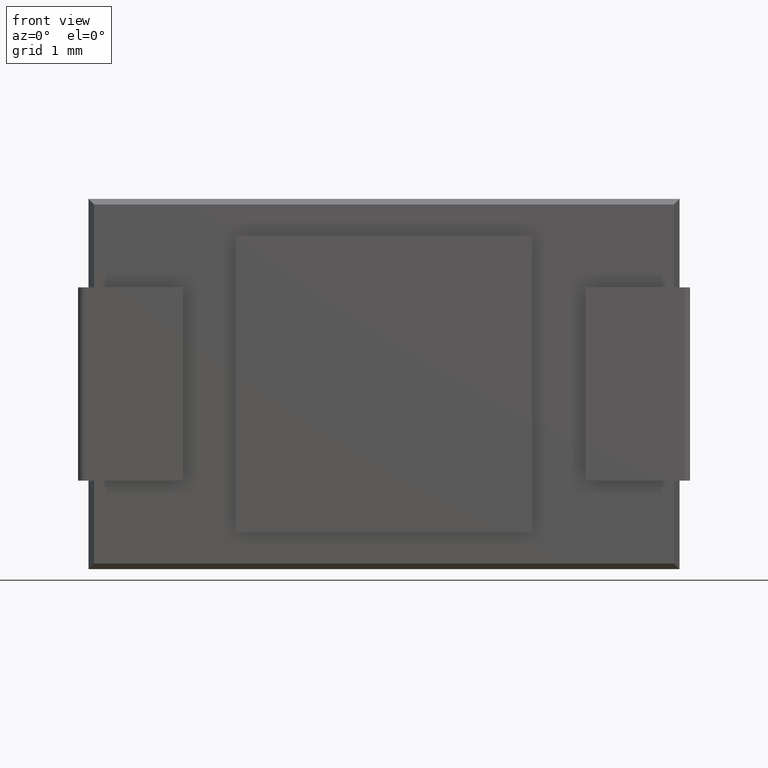
[diagram: clean part render]
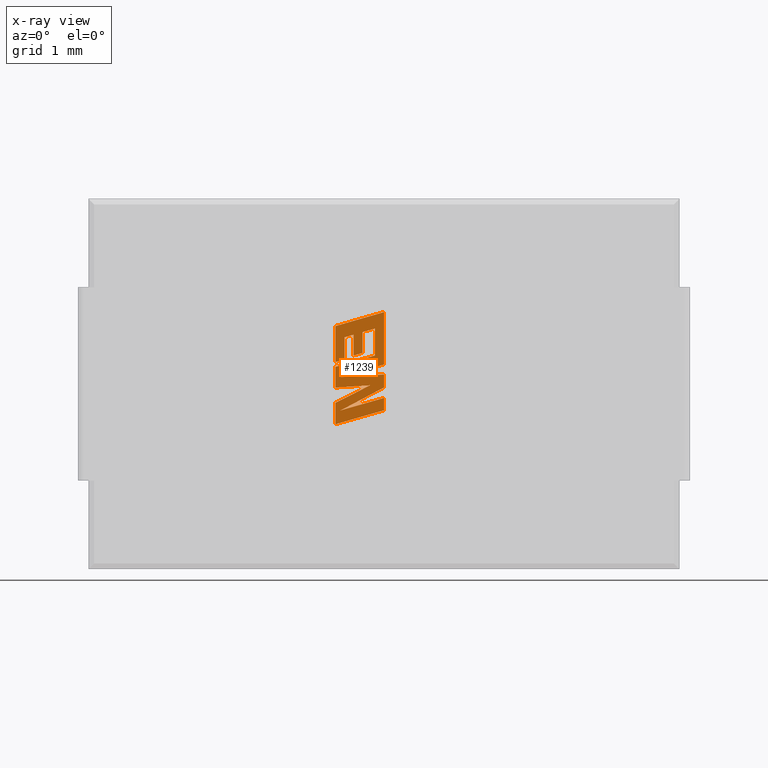
[diagram: x-ray — body ghosted, one internal face saturated and labeled with its STEP entity id]
A machine part, front view, then the same camera in x-ray: the body is ghosted and one INTERNAL B-rep face — a face not visible from any outside direction — is saturated and labeled: STEP entity #1239.
In plain terms, the highlighted planar face has unit normal (-0, 1, -0).
Its self-contained STEP definition (entity closure, byte-faithful):
#20 = CARTESIAN_POINT ( 'NONE',  ( 0.6037723352831047000, 0.9700000000000000800, 0.04544514194465076900 ) ) ;
#34 = CARTESIAN_POINT ( 'NONE',  ( 0.1148680530367434800, 0.9700000000000000800, -0.6869074634693742600 ) ) ;
#123 = EDGE_CURVE ( 'NONE', #1769, #382, #3809, .T. ) ;
#128 = DIRECTION ( 'NONE',  ( -0.9984327301130305800, 0.0000000000000000000, -0.05596501978057384600 ) ) ;
#158 = EDGE_CURVE ( 'NONE', #2965, #1247, #3857, .T. ) ;
#184 = CARTESIAN_POINT ( 'NONE',  ( 0.6037723352831740900, 0.9700000000000000800, -0.7179495588611855000 ) ) ;
#230 = EDGE_CURVE ( 'NONE', #2480, #3153, #2085, .T. ) ;
#241 = ORIENTED_EDGE ( 'NONE', *, *, #158, .F. ) ;
#282 = ORIENTED_EDGE ( 'NONE', *, *, #1126, .F. ) ;
#291 = AXIS2_PLACEMENT_3D ( 'NONE', #3884, #2661, #862 ) ;
#315 = DIRECTION ( 'NONE',  ( 9.097978414977007300E-014, 0.0000000000000000000, -1.000000000000000000 ) ) ;
#317 = VECTOR ( 'NONE', #1668, 1000.000000000000000 ) ;
#326 = EDGE_CURVE ( 'NONE', #1790, #948, #2222, .T. ) ;
#358 = CARTESIAN_POINT ( 'NONE',  ( 0.6037723352831335700, 0.9700000000000000800, -0.2719027913677968800 ) ) ;
#382 = VERTEX_POINT ( 'NONE', #1386 ) ;
#400 = LINE ( 'NONE', #2380, #1717 ) ;
#416 = LINE ( 'NONE', #2887, #317 ) ;
#466 = VECTOR ( 'NONE', #2929, 1000.000000000000100 ) ;
#481 = LINE ( 'NONE', #1795, #3594 ) ;
#516 = CARTESIAN_POINT ( 'NONE',  ( 0.3765458125335470200, 0.9700000000000000800, -0.3531604190415877900 ) ) ;
#544 = ORIENTED_EDGE ( 'NONE', *, *, #941, .F. ) ;
#550 = LINE ( 'NONE', #2318, #3818 ) ;
#579 = LINE ( 'NONE', #2845, #1743 ) ;
#600 = VECTOR ( 'NONE', #3784, 1000.000000000000100 ) ;
#614 = ORIENTED_EDGE ( 'NONE', *, *, #993, .F. ) ;
#626 = EDGE_CURVE ( 'NONE', #3418, #3528, #2840, .T. ) ;
#627 = ORIENTED_EDGE ( 'NONE', *, *, #972, .F. ) ;
#629 = ORIENTED_EDGE ( 'NONE', *, *, #2386, .F. ) ;
#659 = VECTOR ( 'NONE', #3005, 1000.000000000000000 ) ;
#660 = CARTESIAN_POINT ( 'NONE',  ( 0.6037723352830632900, 0.9700000000000000800, 0.5009680948956847200 ) ) ;
#670 = VERTEX_POINT ( 'NONE', #3000 ) ;
#671 = DIRECTION ( 'NONE',  ( -0.8913437914705238900, 0.0000000000000000000, -0.4533279667160974900 ) ) ;
#742 = CARTESIAN_POINT ( 'NONE',  ( 0.4888473714328154300, 0.9700000000000000800, -0.5796287428792815700 ) ) ;
#808 = ORIENTED_EDGE ( 'NONE', *, *, #326, .F. ) ;
#816 = FACE_OUTER_BOUND ( 'NONE', #1978, .T. ) ;
#862 = DIRECTION ( 'NONE',  ( 0.0000000000000000000, 0.0000000000000000000, 1.000000000000000000 ) ) ;
#912 = EDGE_CURVE ( 'NONE', #1187, #3786, #579, .T. ) ;
#923 = CARTESIAN_POINT ( 'NONE',  ( 0.3765458125335470200, 0.9700000000000000800, -0.3531604190415877900 ) ) ;
#931 = ORIENTED_EDGE ( 'NONE', *, *, #626, .F. ) ;
#941 = EDGE_CURVE ( 'NONE', #3227, #1123, #2062, .T. ) ;
#943 = VECTOR ( 'NONE', #2556, 1000.000000000000000 ) ;
#948 = VERTEX_POINT ( 'NONE', #2568 ) ;
#972 = EDGE_CURVE ( 'NONE', #3099, #3361, #1832, .T. ) ;
#985 = CARTESIAN_POINT ( 'NONE',  ( 0.3765458125335706100, 0.9700000000000000800, -0.6123065652234414000 ) ) ;
#993 = EDGE_CURVE ( 'NONE', #3153, #1693, #416, .T. ) ;
#1005 = VECTOR ( 'NONE', #128, 1000.000000000000100 ) ;
#1074 = ORIENTED_EDGE ( 'NONE', *, *, #2353, .F. ) ;
#1090 = CARTESIAN_POINT ( 'NONE',  ( 0.5401111641926021900, 0.9700000000000000800, 0.3290533760443737400 ) ) ;
#1102 = DIRECTION ( 'NONE',  ( -0.9611542233439102100, 0.0000000000000000000, -0.2760118818967128900 ) ) ;
#1112 = CARTESIAN_POINT ( 'NONE',  ( -8.112542755622786900E-016, 0.9700000000000000800, 0.04392652526658989700 ) ) ;
#1123 = VERTEX_POINT ( 'NONE', #3233 ) ;
#1126 = EDGE_CURVE ( 'NONE', #382, #670, #1256, .T. ) ;
#1151 = EDGE_CURVE ( 'NONE', #3786, #3418, #550, .T. ) ;
#1187 = VERTEX_POINT ( 'NONE', #1474 ) ;
#1188 = VECTOR ( 'NONE', #2368, 1000.000000000000000 ) ;
#1239 = ADVANCED_FACE ( 'NONE', ( #816 ), #2645, .F. ) ;
#1247 = VERTEX_POINT ( 'NONE', #2354 ) ;
#1256 = LINE ( 'NONE', #184, #466 ) ;
#1269 = VERTEX_POINT ( 'NONE', #3291 ) ;
#1281 = DIRECTION ( 'NONE',  ( 0.9619530280422579100, 0.0000000000000000000, 0.2732148821721305200 ) ) ;
#1294 = ORIENTED_EDGE ( 'NONE', *, *, #3255, .F. ) ;
#1311 = CARTESIAN_POINT ( 'NONE',  ( -8.112542755622786900E-016, 0.9700000000000000800, 0.3273790966074727200 ) ) ;
#1346 = ORIENTED_EDGE ( 'NONE', *, *, #3068, .F. ) ;
#1357 = CARTESIAN_POINT ( 'NONE',  ( 0.6037723352831281300, 0.9700000000000000800, -0.2116801349541560500 ) ) ;
#1386 = CARTESIAN_POINT ( 'NONE',  ( 0.6037723352831740900, 0.9700000000000000800, -0.7179495588611855000 ) ) ;
#1387 = DIRECTION ( 'NONE',  ( 0.9610674221106666500, 0.0000000000000000000, 0.2763139702540534600 ) ) ;
#1395 = LINE ( 'NONE', #2450, #3806 ) ;
#1402 = LINE ( 'NONE', #2182, #600 ) ;
#1412 = ORIENTED_EDGE ( 'NONE', *, *, #230, .F. ) ;
#1474 = CARTESIAN_POINT ( 'NONE',  ( 0.2649290192373626700, 0.9700000000000000800, -0.6441509195145620500 ) ) ;
#1486 = DIRECTION ( 'NONE',  ( 0.9601763114335389900, 0.0000000000000000000, 0.2793947940851501100 ) ) ;
#1504 = VECTOR ( 'NONE', #1281, 999.9999999999998900 ) ;
#1521 = EDGE_CURVE ( 'NONE', #670, #3395, #2075, .T. ) ;
#1535 = DIRECTION ( 'NONE',  ( 9.090908466822406900E-014, 0.0000000000000000000, -1.000000000000000000 ) ) ;
#1601 = CARTESIAN_POINT ( 'NONE',  ( 0.5401111641926021900, 0.9700000000000000800, 0.3290533760443737400 ) ) ;
#1629 = DIRECTION ( 'NONE',  ( -9.099267628299300500E-014, 0.0000000000000000000, 1.000000000000000000 ) ) ;
#1668 = DIRECTION ( 'NONE',  ( 9.099744102172167400E-014, 0.0000000000000000000, -1.000000000000000000 ) ) ;
#1693 = VERTEX_POINT ( 'NONE', #34 ) ;
#1715 = ORIENTED_EDGE ( 'NONE', *, *, #1944, .F. ) ;
#1717 = VECTOR ( 'NONE', #2059, 1000.000000000000100 ) ;
#1735 = VECTOR ( 'NONE', #1387, 999.9999999999998900 ) ;
#1743 = VECTOR ( 'NONE', #1629, 1000.000000000000000 ) ;
#1769 = VERTEX_POINT ( 'NONE', #1921 ) ;
#1788 = VECTOR ( 'NONE', #3710, 1000.000000000000000 ) ;
#1790 = VERTEX_POINT ( 'NONE', #1601 ) ;
#1795 = CARTESIAN_POINT ( 'NONE',  ( 0.3765458125335706100, 0.9700000000000000800, -0.6123065652234414000 ) ) ;
#1832 = LINE ( 'NONE', #1914, #1005 ) ;
#1860 = DIRECTION ( 'NONE',  ( 0.9611638845409428100, 0.0000000000000000000, 0.2759782365589088000 ) ) ;
#1872 = EDGE_CURVE ( 'NONE', #3658, #2965, #3831, .T. ) ;
#1883 = CARTESIAN_POINT ( 'NONE',  ( 0.4888473714327902800, 0.9700000000000000800, -0.3045438970576566700 ) ) ;
#1914 = CARTESIAN_POINT ( 'NONE',  ( 0.5375226400641756100, 0.9700000000000000800, -0.08690409323463860200 ) ) ;
#1921 = CARTESIAN_POINT ( 'NONE',  ( 0.6037723352831335700, 0.9700000000000000800, -0.2719027913677968800 ) ) ;
#1938 = CARTESIAN_POINT ( 'NONE',  ( -8.822695178600791300E-016, 0.9700000000000000800, -0.2412425496636904600 ) ) ;
#1944 = EDGE_CURVE ( 'NONE', #3528, #3227, #481, .T. ) ;
#1967 = EDGE_CURVE ( 'NONE', #3361, #1269, #2578, .T. ) ;
#1978 = EDGE_LOOP ( 'NONE', ( #241, #1982, #2856, #808, #1294, #3333, #627, #2125, #2510, #282, #2221, #1074, #544, #1715, #931, #3154, #2730, #3073, #614, #1412, #629, #1346, #2355 ) ) ;
#1982 = ORIENTED_EDGE ( 'NONE', *, *, #1872, .F. ) ;
#2059 = DIRECTION ( 'NONE',  ( 0.9617234872627998800, 0.0000000000000000000, 0.2740217765928089100 ) ) ;
#2062 = LINE ( 'NONE', #2246, #943 ) ;
#2075 = LINE ( 'NONE', #3888, #659 ) ;
#2085 = LINE ( 'NONE', #1357, #2848 ) ;
#2125 = ORIENTED_EDGE ( 'NONE', *, *, #3596, .F. ) ;
#2155 = VERTEX_POINT ( 'NONE', #20 ) ;
#2182 = CARTESIAN_POINT ( 'NONE',  ( 0.1724296214341100900, 0.9700000000000000800, 0.01678134112216285400 ) ) ;
#2187 = VECTOR ( 'NONE', #1535, 1000.000000000000000 ) ;
#2219 = CARTESIAN_POINT ( 'NONE',  ( 0.1724296214341100900, 0.9700000000000000800, 0.01678134112216285400 ) ) ;
#2221 = ORIENTED_EDGE ( 'NONE', *, *, #123, .F. ) ;
#2222 = LINE ( 'NONE', #1090, #3071 ) ;
#2246 = CARTESIAN_POINT ( 'NONE',  ( 0.4888473714328154300, 0.9700000000000000800, -0.5796287428792815700 ) ) ;
#2273 = VECTOR ( 'NONE', #3143, 1000.000000000000200 ) ;
#2281 = VECTOR ( 'NONE', #671, 1000.000000000000100 ) ;
#2318 = CARTESIAN_POINT ( 'NONE',  ( 0.2649290192373391400, 0.9700000000000000800, -0.3850414899870292500 ) ) ;
#2353 = EDGE_CURVE ( 'NONE', #1123, #1769, #3720, .T. ) ;
#2354 = CARTESIAN_POINT ( 'NONE',  ( 0.6037723352830873800, 0.9700000000000000800, 0.2361576550631197000 ) ) ;
#2355 = ORIENTED_EDGE ( 'NONE', *, *, #2798, .F. ) ;
#2368 = DIRECTION ( 'NONE',  ( 2.205986198964109500E-016, 0.0000000000000000000, 1.000000000000000000 ) ) ;
#2380 = CARTESIAN_POINT ( 'NONE',  ( 0.1148680530367434800, 0.9700000000000000800, -0.6869074634693742600 ) ) ;
#2386 = EDGE_CURVE ( 'NONE', #2155, #2480, #2575, .T. ) ;
#2450 = CARTESIAN_POINT ( 'NONE',  ( -8.822695178600791300E-016, 0.9700000000000000800, -0.2412425496636904600 ) ) ;
#2480 = VERTEX_POINT ( 'NONE', #2969 ) ;
#2510 = ORIENTED_EDGE ( 'NONE', *, *, #1521, .F. ) ;
#2534 = CARTESIAN_POINT ( 'NONE',  ( 0.6037723352830632900, 0.9700000000000000800, 0.5009680948956847200 ) ) ;
#2554 = CARTESIAN_POINT ( 'NONE',  ( 0.5375226400641756100, 0.9700000000000000800, -0.08690409323463860200 ) ) ;
#2556 = DIRECTION ( 'NONE',  ( -9.100055233942956100E-014, 0.0000000000000000000, 1.000000000000000000 ) ) ;
#2568 = CARTESIAN_POINT ( 'NONE',  ( -8.112542755622786900E-016, 0.9700000000000000800, 0.1739512132056387800 ) ) ;
#2575 = LINE ( 'NONE', #3052, #1788 ) ;
#2578 = LINE ( 'NONE', #3012, #1188 ) ;
#2645 = PLANE ( 'NONE',  #291 ) ;
#2653 = CARTESIAN_POINT ( 'NONE',  ( -8.467618967111790600E-016, 0.9700000000000000800, -0.1170337797687451300 ) ) ;
#2661 = DIRECTION ( 'NONE',  ( 0.0000000000000000000, 1.000000000000000000, 0.0000000000000000000 ) ) ;
#2730 = ORIENTED_EDGE ( 'NONE', *, *, #912, .F. ) ;
#2755 = LINE ( 'NONE', #1112, #2273 ) ;
#2767 = DIRECTION ( 'NONE',  ( 9.091094427461413900E-014, 0.0000000000000000000, -1.000000000000000000 ) ) ;
#2798 = EDGE_CURVE ( 'NONE', #1247, #3067, #3086, .T. ) ;
#2817 = CARTESIAN_POINT ( 'NONE',  ( -8.112542755622786900E-016, 0.9700000000000000800, 0.1739512132056387800 ) ) ;
#2833 = DIRECTION ( 'NONE',  ( 0.0000000000000000000, 0.0000000000000000000, 1.000000000000000000 ) ) ;
#2840 = LINE ( 'NONE', #923, #2974 ) ;
#2845 = CARTESIAN_POINT ( 'NONE',  ( 0.2649290192373626700, 0.9700000000000000800, -0.6441509195145620500 ) ) ;
#2848 = VECTOR ( 'NONE', #3471, 1000.000000000000200 ) ;
#2856 = ORIENTED_EDGE ( 'NONE', *, *, #3665, .F. ) ;
#2875 = CARTESIAN_POINT ( 'NONE',  ( -8.112542755622786900E-016, 0.9700000000000000800, 0.3273790966074727200 ) ) ;
#2887 = CARTESIAN_POINT ( 'NONE',  ( 0.1148680530367130500, 0.9700000000000000800, -0.3522094576957942600 ) ) ;
#2929 = DIRECTION ( 'NONE',  ( -0.9610029908221109400, 0.0000000000000000000, -0.2765379750250543400 ) ) ;
#2937 = VECTOR ( 'NONE', #2833, 1000.000000000000000 ) ;
#2965 = VERTEX_POINT ( 'NONE', #2534 ) ;
#2967 = DIRECTION ( 'NONE',  ( 0.9615454294341646600, 0.0000000000000000000, 0.2746459304891803500 ) ) ;
#2969 = CARTESIAN_POINT ( 'NONE',  ( 0.6037723352831281300, 0.9700000000000000800, -0.2116801349541560500 ) ) ;
#2974 = VECTOR ( 'NONE', #315, 1000.000000000000000 ) ;
#3000 = CARTESIAN_POINT ( 'NONE',  ( -9.532847601578797700E-016, 0.9700000000000000800, -0.8916909317496535300 ) ) ;
#3005 = DIRECTION ( 'NONE',  ( 0.0000000000000000000, 0.0000000000000000000, 1.000000000000000000 ) ) ;
#3007 = CARTESIAN_POINT ( 'NONE',  ( 0.6037723352830873800, 0.9700000000000000800, 0.2361576550631197000 ) ) ;
#3012 = CARTESIAN_POINT ( 'NONE',  ( -8.467618967111790600E-016, 0.9700000000000000800, -0.1170337797687451300 ) ) ;
#3052 = CARTESIAN_POINT ( 'NONE',  ( 0.6037723352831047000, 0.9700000000000000800, 0.04544514194465076900 ) ) ;
#3067 = VERTEX_POINT ( 'NONE', #2219 ) ;
#3068 = EDGE_CURVE ( 'NONE', #3067, #2155, #1402, .T. ) ;
#3071 = VECTOR ( 'NONE', #1102, 999.9999999999998900 ) ;
#3073 = ORIENTED_EDGE ( 'NONE', *, *, #3489, .F. ) ;
#3086 = LINE ( 'NONE', #3007, #2281 ) ;
#3099 = VERTEX_POINT ( 'NONE', #2554 ) ;
#3143 = DIRECTION ( 'NONE',  ( 0.8843386665638872700, 0.0000000000000000000, 0.4668459304952820000 ) ) ;
#3153 = VERTEX_POINT ( 'NONE', #3485 ) ;
#3154 = ORIENTED_EDGE ( 'NONE', *, *, #1151, .F. ) ;
#3227 = VERTEX_POINT ( 'NONE', #742 ) ;
#3233 = CARTESIAN_POINT ( 'NONE',  ( 0.4888473714327902800, 0.9700000000000000800, -0.3045438970576566700 ) ) ;
#3234 = CARTESIAN_POINT ( 'NONE',  ( 0.2649290192373391400, 0.9700000000000000800, -0.3850414899870292500 ) ) ;
#3255 = EDGE_CURVE ( 'NONE', #1269, #1790, #2755, .T. ) ;
#3291 = CARTESIAN_POINT ( 'NONE',  ( -8.112542755622786900E-016, 0.9700000000000000800, 0.04392652526658989700 ) ) ;
#3318 = LINE ( 'NONE', #2817, #2937 ) ;
#3333 = ORIENTED_EDGE ( 'NONE', *, *, #1967, .F. ) ;
#3361 = VERTEX_POINT ( 'NONE', #2653 ) ;
#3395 = VERTEX_POINT ( 'NONE', #1938 ) ;
#3418 = VERTEX_POINT ( 'NONE', #516 ) ;
#3471 = DIRECTION ( 'NONE',  ( -0.9610853065521319800, 0.0000000000000000000, -0.2762517575140371300 ) ) ;
#3485 = CARTESIAN_POINT ( 'NONE',  ( 0.1148680530367130500, 0.9700000000000000800, -0.3522094576957942600 ) ) ;
#3489 = EDGE_CURVE ( 'NONE', #1693, #1187, #400, .T. ) ;
#3528 = VERTEX_POINT ( 'NONE', #985 ) ;
#3594 = VECTOR ( 'NONE', #1486, 1000.000000000000200 ) ;
#3596 = EDGE_CURVE ( 'NONE', #3395, #3099, #1395, .T. ) ;
#3658 = VERTEX_POINT ( 'NONE', #2875 ) ;
#3665 = EDGE_CURVE ( 'NONE', #948, #3658, #3318, .T. ) ;
#3710 = DIRECTION ( 'NONE',  ( 9.086626953899770000E-014, 0.0000000000000000000, -1.000000000000000000 ) ) ;
#3720 = LINE ( 'NONE', #1883, #1504 ) ;
#3758 = VECTOR ( 'NONE', #2767, 1000.000000000000000 ) ;
#3784 = DIRECTION ( 'NONE',  ( 0.9977993186281748400, 0.0000000000000000000, 0.06630625720963190300 ) ) ;
#3786 = VERTEX_POINT ( 'NONE', #3234 ) ;
#3806 = VECTOR ( 'NONE', #1860, 1000.000000000000200 ) ;
#3809 = LINE ( 'NONE', #358, #2187 ) ;
#3818 = VECTOR ( 'NONE', #2967, 1000.000000000000100 ) ;
#3831 = LINE ( 'NONE', #1311, #1735 ) ;
#3857 = LINE ( 'NONE', #660, #3758 ) ;
#3884 = CARTESIAN_POINT ( 'NONE',  ( 0.1719568060153508500, 0.9700000000000000800, 0.01662713069071038500 ) ) ;
#3888 = CARTESIAN_POINT ( 'NONE',  ( -8.822695178600791300E-016, 0.9700000000000000800, -0.3487121968547171600 ) ) ;